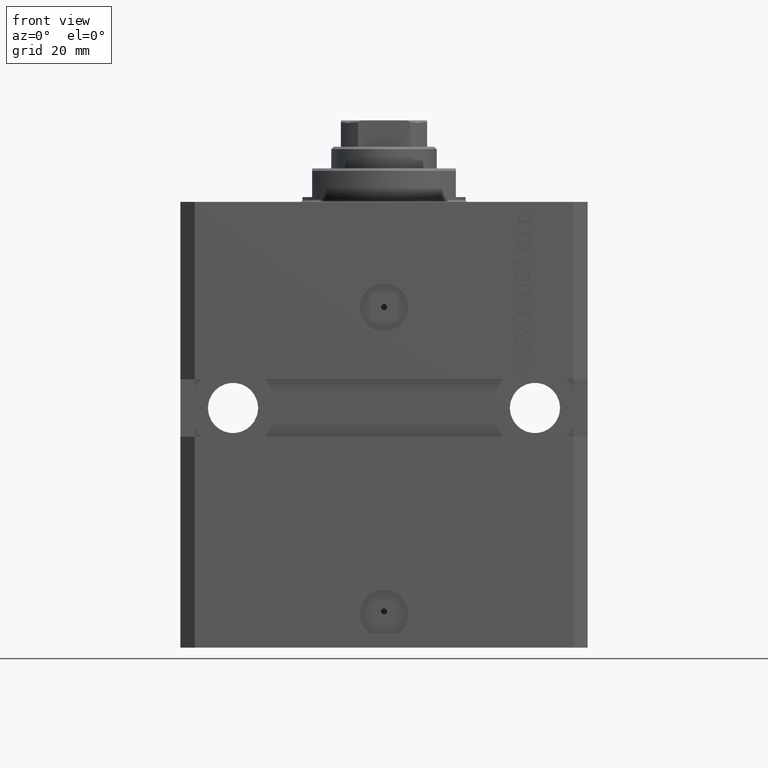
[diagram: clean part render]
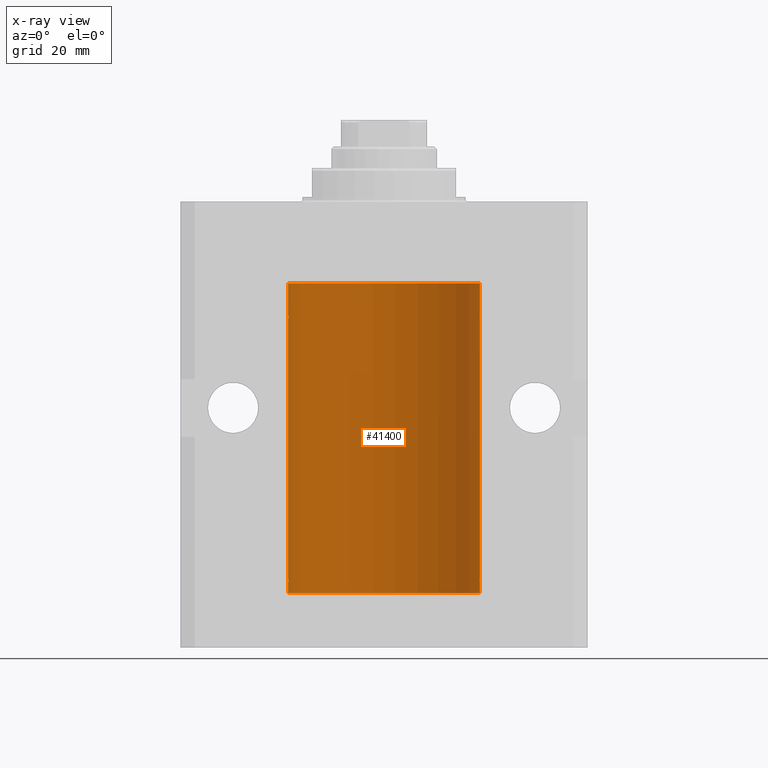
[diagram: x-ray — body ghosted, one internal face saturated and labeled with its STEP entity id]
A machine part, front view, then the same camera in x-ray: the body is ghosted and one INTERNAL B-rep face — a face not visible from any outside direction — is saturated and labeled: STEP entity #41400.
In plain terms, the highlighted cylindrical surface (partial cylindrical patch) has radius 20 mm, axis along (0, 0, 1).
Its self-contained STEP definition (entity closure, byte-faithful):
#81 = CARTESIAN_POINT ( 'NONE',  ( -20.00000000000010303, 3.580159278407742946E-13, -24.62500000000332889 ) ) ;
#247 = CARTESIAN_POINT ( 'NONE',  ( -19.99253506710754991, 0.5587120480776751608, -24.32511620830248589 ) ) ;
#329 = VERTEX_POINT ( 'NONE', #20275 ) ;
#502 = CARTESIAN_POINT ( 'NONE',  ( 19.99638788807192924, 0.3844440352705356112, -24.49948058986480603 ) ) ;
#535 = CIRCLE ( 'NONE', #23237, 20.00000000000000000 ) ;
#1035 = LINE ( 'NONE', #21917, #13426 ) ;
#1283 = EDGE_CURVE ( 'NONE', #30152, #14944, #17532, .T. ) ;
#1665 = CARTESIAN_POINT ( 'NONE',  ( 19.99023198964909298, 0.6250000000081574747, -78.99999999999911893 ) ) ;
#1896 = CARTESIAN_POINT ( 'NONE',  ( 19.99999999999999645, 0.1631318418333158327, -78.37500000000015632 ) ) ;
#2230 = LINE ( 'NONE', #26113, #9998 ) ;
#2639 = EDGE_CURVE ( 'NONE', #42081, #6706, #33427, .T. ) ;
#2912 = VECTOR ( 'NONE', #32016, 1000.000000000000000 ) ;
#3072 = CARTESIAN_POINT ( 'NONE',  ( -19.99256581701871838, 0.5573276956901996870, -78.67348565770949165 ) ) ;
#3259 = VERTEX_POINT ( 'NONE', #36221 ) ;
#3470 = CARTESIAN_POINT ( 'NONE',  ( -19.99769349528941120, 0.3253804398728645242, -24.55855820727680339 ) ) ;
#4038 = DIRECTION ( 'NONE',  ( -0.000000000000000000, -0.000000000000000000, 1.000000000000000000 ) ) ;
#4365 = CARTESIAN_POINT ( 'NONE',  ( -19.99023018003212471, 0.6250578794725500931, -24.16284809704970371 ) ) ;
#4441 = DIRECTION ( 'NONE',  ( 0.000000000000000000, 0.000000000000000000, 1.000000000000000000 ) ) ;
#4967 = CARTESIAN_POINT ( 'NONE',  ( 20.00000000000000000, 0.000000000000000000, -81.59999999999999432 ) ) ;
#5329 = CARTESIAN_POINT ( 'NONE',  ( 19.99769474220011034, 0.3253030616682413001, -78.44140633897630721 ) ) ;
#5581 = ORIENTED_EDGE ( 'NONE', *, *, #1283, .T. ) ;
#6515 = CARTESIAN_POINT ( 'NONE',  ( -19.99638934703457238, 0.3843678041337651452, -78.50046362978099523 ) ) ;
#6706 = VERTEX_POINT ( 'NONE', #81 ) ;
#7128 = CARTESIAN_POINT ( 'NONE',  ( -20.00000000000000000, 0.1631688615953320320, -24.62499999999985434 ) ) ;
#7386 = CARTESIAN_POINT ( 'NONE',  ( 19.99999999999999645, 0.08261455565447869964, -24.62499999999998579 ) ) ;
#7433 = ORIENTED_EDGE ( 'NONE', *, *, #39396, .T. ) ;
#7579 = CARTESIAN_POINT ( 'NONE',  ( -19.99023380173166231, 0.6249420416828462832, -23.83670793056396064 ) ) ;
#7658 = DIRECTION ( 'NONE',  ( 1.000000000000000000, 0.000000000000000000, 0.000000000000000000 ) ) ;
#8403 = CARTESIAN_POINT ( 'NONE',  ( -20.00000000000000000, -1.124177324826063808E-14, -78.37500000000000000 ) ) ;
#8776 = CARTESIAN_POINT ( 'NONE',  ( 19.99947351343144319, 0.1636818329565372654, -79.60872855715646779 ) ) ;
#8934 = EDGE_CURVE ( 'NONE', #3259, #30152, #25955, .T. ) ;
#9001 = CARTESIAN_POINT ( 'NONE',  ( 20.00000000000000000, -4.058908006348821872E-15, -79.62500000000000000 ) ) ;
#9241 = CARTESIAN_POINT ( 'NONE',  ( -20.00000000000000000, 2.449293598294706513E-15, -81.59999999999999432 ) ) ;
#9511 = CARTESIAN_POINT ( 'NONE',  ( -20.00000000000010303, 3.580159286679549072E-13, -79.62500000000332534 ) ) ;
#9998 = VECTOR ( 'NONE', #33223, 1000.000000000000000 ) ;
#10498 = VERTEX_POINT ( 'NONE', #11542 ) ;
#10621 = CARTESIAN_POINT ( 'NONE',  ( 19.99256353007439202, 0.5574106582031151946, -24.32639035180115172 ) ) ;
#10808 = CARTESIAN_POINT ( 'NONE',  ( -19.99638934703457593, 0.3843678041337688644, -23.50046362978100944 ) ) ;
#11261 = CARTESIAN_POINT ( 'NONE',  ( -19.99766197842594906, 0.3150331617867667688, -23.45402070102505476 ) ) ;
#11542 = CARTESIAN_POINT ( 'NONE',  ( -20.00000000000000000, 2.449293598294706513E-15, -81.59999999999999432 ) ) ;
#11548 = CARTESIAN_POINT ( 'NONE',  ( 19.99256353007439202, 0.5574106582031174151, -79.32639035180115172 ) ) ;
#11671 = EDGE_CURVE ( 'NONE', #14089, #39260, #2230, .T. ) ;
#12098 = LINE ( 'NONE', #4967, #30684 ) ;
#12224 = CARTESIAN_POINT ( 'NONE',  ( 19.99766100389833312, 0.3150982863324784944, -79.54594438241281296 ) ) ;
#12234 = ORIENTED_EDGE ( 'NONE', *, *, #39230, .T. ) ;
#12683 = CARTESIAN_POINT ( 'NONE',  ( 19.99023198964909298, 0.6250000000081574747, -78.99999999999911893 ) ) ;
#13426 = VECTOR ( 'NONE', #4038, 1000.000000000000000 ) ;
#14089 = VERTEX_POINT ( 'NONE', #24874 ) ;
#14090 = EDGE_CURVE ( 'NONE', #14089, #10498, #535, .T. ) ;
#14721 = CARTESIAN_POINT ( 'NONE',  ( 20.00000000000000000, 1.042771508482559297E-15, -24.62500000000000000 ) ) ;
#14944 = VERTEX_POINT ( 'NONE', #26702 ) ;
#15165 = ORIENTED_EDGE ( 'NONE', *, *, #27684, .T. ) ;
#15363 = ORIENTED_EDGE ( 'NONE', *, *, #11671, .T. ) ;
#15588 = DIRECTION ( 'NONE',  ( 1.000000000000000000, 0.000000000000000000, 0.000000000000000000 ) ) ;
#15701 = CARTESIAN_POINT ( 'NONE',  ( 19.99253733128256272, 0.5586305947778931191, -23.67476036735258305 ) ) ;
#16119 = ORIENTED_EDGE ( 'NONE', *, *, #36642, .F. ) ;
#16628 = CARTESIAN_POINT ( 'NONE',  ( -19.99766197842594551, 0.3150331617867603295, -78.45402070102504410 ) ) ;
#17117 = CARTESIAN_POINT ( 'NONE',  ( 20.00000000000000000, 0.000000000000000000, -17.00000000000000000 ) ) ;
#17118 = CARTESIAN_POINT ( 'NONE',  ( 20.00000000000000000, 0.000000000000000000, -81.59999999999999432 ) ) ;
#17188 = EDGE_CURVE ( 'NONE', #14944, #32445, #12098, .T. ) ;
#17532 = B_SPLINE_CURVE_WITH_KNOTS ( 'NONE', 3,
 ( #30155, #19139, #15701, #40456, #26261, #43442 ),
 .UNSPECIFIED., .F., .F.,
 ( 4, 2, 4 ),
 ( 0.0009772989342736214998, 0.001465726722058845102, 0.001954154509844068920 ),
 .UNSPECIFIED. ) ;
#18110 = ORIENTED_EDGE ( 'NONE', *, *, #2639, .T. ) ;
#18134 = CARTESIAN_POINT ( 'NONE',  ( -19.99256581701871482, 0.5573276956902001311, -23.67348565770948809 ) ) ;
#18946 = B_SPLINE_CURVE_WITH_KNOTS ( 'NONE', 3,
 ( #45275, #34060, #31302, #16628, #6515, #3072, #37943, #26958, #31078, #45050, #38167, #9511 ),
 .UNSPECIFIED., .F., .F.,
 ( 4, 2, 2, 2, 2, 4 ),
 ( 1.522880481566060999E-18, 0.0002442693137305179392, 0.0004885386274610343605, 0.0009770772549220966934, 0.001465615882383158918, 0.001954154509844221576 ),
 .UNSPECIFIED. ) ;
#19022 = ORIENTED_EDGE ( 'NONE', *, *, #26352, .F. ) ;
#19139 = CARTESIAN_POINT ( 'NONE',  ( 19.99023198964935588, 0.6249999999995746736, -23.83696384779806721 ) ) ;
#19331 = DIRECTION ( 'NONE',  ( 1.000000000000000000, 0.000000000000000000, 0.000000000000000000 ) ) ;
#20095 = ORIENTED_EDGE ( 'NONE', *, *, #17188, .T. ) ;
#20248 = DIRECTION ( 'NONE',  ( -0.000000000000000000, -0.000000000000000000, 1.000000000000000000 ) ) ;
#20275 = CARTESIAN_POINT ( 'NONE',  ( -20.00000000000000000, 2.449293598294706513E-15, -17.00000000000000000 ) ) ;
#21116 = VERTEX_POINT ( 'NONE', #8403 ) ;
#21917 = CARTESIAN_POINT ( 'NONE',  ( -20.00000000000000000, 2.449293598294706513E-15, -81.59999999999999432 ) ) ;
#21926 = VECTOR ( 'NONE', #20248, 1000.000000000000000 ) ;
#22013 = DIRECTION ( 'NONE',  ( -0.000000000000000000, -0.000000000000000000, 1.000000000000000000 ) ) ;
#22544 = ORIENTED_EDGE ( 'NONE', *, *, #14090, .F. ) ;
#22767 = CARTESIAN_POINT ( 'NONE',  ( 0.000000000000000000, 0.000000000000000000, -17.00000000000000000 ) ) ;
#22856 = DIRECTION ( 'NONE',  ( -0.000000000000000000, -0.000000000000000000, 1.000000000000000000 ) ) ;
#23144 = CARTESIAN_POINT ( 'NONE',  ( 20.00000000000010303, 3.555666352936568165E-13, -78.37499999999667466 ) ) ;
#23237 = AXIS2_PLACEMENT_3D ( 'NONE', #35425, #4441, #7658 ) ;
#23682 = DIRECTION ( 'NONE',  ( -0.000000000000000000, -0.000000000000000000, 1.000000000000000000 ) ) ;
#24133 = VECTOR ( 'NONE', #23682, 1000.000000000000000 ) ;
#24874 = CARTESIAN_POINT ( 'NONE',  ( 20.00000000000000000, 0.000000000000000000, -81.59999999999999432 ) ) ;
#25237 = CARTESIAN_POINT ( 'NONE',  ( 0.000000000000000000, 0.000000000000000000, -81.59999999999999432 ) ) ;
#25246 = CARTESIAN_POINT ( 'NONE',  ( -20.00000000000000000, -2.867584836844214272E-15, -23.37500000000000000 ) ) ;
#25955 = B_SPLINE_CURVE_WITH_KNOTS ( 'NONE', 3,
 ( #14721, #7386, #31950, #31724, #502, #10621, #28506, #42691 ),
 .UNSPECIFIED., .F., .F.,
 ( 4, 2, 2, 4 ),
 ( 1.013370767385449693E-18, 0.0002443247335684061339, 0.0004886494671368111836, 0.0009772989342736214998 ),
 .UNSPECIFIED. ) ;
#26113 = CARTESIAN_POINT ( 'NONE',  ( 20.00000000000000000, 0.000000000000000000, -81.59999999999999432 ) ) ;
#26261 = CARTESIAN_POINT ( 'NONE',  ( 19.99999999999999645, 0.1631318418333146114, -23.37500000000016698 ) ) ;
#26352 = EDGE_CURVE ( 'NONE', #10498, #39793, #40655, .T. ) ;
#26361 = EDGE_CURVE ( 'NONE', #21116, #6706, #45003, .T. ) ;
#26702 = CARTESIAN_POINT ( 'NONE',  ( 20.00000000000010303, 3.555666340528858977E-13, -23.37499999999667111 ) ) ;
#26876 = ORIENTED_EDGE ( 'NONE', *, *, #45201, .T. ) ;
#26958 = CARTESIAN_POINT ( 'NONE',  ( -19.99023018003212471, 0.6250578794725522025, -79.16284809704971792 ) ) ;
#27506 = CARTESIAN_POINT ( 'NONE',  ( 19.99023198964909298, 0.6250000000081508134, -23.99999999999910472 ) ) ;
#27684 = EDGE_CURVE ( 'NONE', #32119, #3259, #41654, .T. ) ;
#28506 = CARTESIAN_POINT ( 'NONE',  ( 19.99023198964933812, 0.6250000000002681189, -24.16311014829328130 ) ) ;
#29626 = CIRCLE ( 'NONE', #36947, 20.00000000000000000 ) ;
#30058 = CARTESIAN_POINT ( 'NONE',  ( -20.00000000000010303, 3.580159286679549072E-13, -79.62500000000332534 ) ) ;
#30152 = VERTEX_POINT ( 'NONE', #27506 ) ;
#30155 = CARTESIAN_POINT ( 'NONE',  ( 19.99023198964909298, 0.6250000000081508134, -23.99999999999910472 ) ) ;
#30336 = CARTESIAN_POINT ( 'NONE',  ( -20.00000000000000000, -2.867584836844214272E-15, -23.37500000000000000 ) ) ;
#30684 = VECTOR ( 'NONE', #22856, 1000.000000000000000 ) ;
#31078 = CARTESIAN_POINT ( 'NONE',  ( -19.99253506710754991, 0.5587120480776742726, -79.32511620830248944 ) ) ;
#31302 = CARTESIAN_POINT ( 'NONE',  ( -19.99947377218718003, 0.1636439183262797525, -78.39126364004653169 ) ) ;
#31724 = CARTESIAN_POINT ( 'NONE',  ( 19.99766100389832957, 0.3150982863324730543, -24.54594438241278453 ) ) ;
#31950 = CARTESIAN_POINT ( 'NONE',  ( 19.99947351343144675, 0.1636818329565319363, -24.60872855715643936 ) ) ;
#32016 = DIRECTION ( 'NONE',  ( -0.000000000000000000, -0.000000000000000000, 1.000000000000000000 ) ) ;
#32119 = VERTEX_POINT ( 'NONE', #23144 ) ;
#32445 = VERTEX_POINT ( 'NONE', #17117 ) ;
#33104 = CARTESIAN_POINT ( 'NONE',  ( 20.00000000000010303, 3.555666352936568165E-13, -78.37499999999667466 ) ) ;
#33223 = DIRECTION ( 'NONE',  ( -0.000000000000000000, -0.000000000000000000, 1.000000000000000000 ) ) ;
#33334 = CARTESIAN_POINT ( 'NONE',  ( 19.99999999999999645, 0.08261455565447825555, -79.62499999999997158 ) ) ;
#33427 = B_SPLINE_CURVE_WITH_KNOTS ( 'NONE', 3,
 ( #25246, #38552, #39000, #11261, #10808, #18134, #7579, #4365, #247, #3470, #7128, #42436 ),
 .UNSPECIFIED., .F., .F.,
 ( 4, 2, 2, 2, 2, 4 ),
 ( 5.848927291235706941E-19, 0.0002442693137305304075, 0.0004885386274610601645, 0.0009770772549221123059, 0.001465615882383164339, 0.001954154509844215938 ),
 .UNSPECIFIED. ) ;
#33809 = ORIENTED_EDGE ( 'NONE', *, *, #8934, .T. ) ;
#34060 = CARTESIAN_POINT ( 'NONE',  ( -19.99999999999999289, 0.08259581631026131909, -78.37499999999998579 ) ) ;
#34671 = AXIS2_PLACEMENT_3D ( 'NONE', #25237, #22013, #15588 ) ;
#34735 = CARTESIAN_POINT ( 'NONE',  ( 20.00000000000000000, -4.058908006348821872E-15, -79.62500000000000000 ) ) ;
#35425 = CARTESIAN_POINT ( 'NONE',  ( 0.000000000000000000, 0.000000000000000000, -81.59999999999999432 ) ) ;
#35861 = B_SPLINE_CURVE_WITH_KNOTS ( 'NONE', 3,
 ( #1665, #36757, #39966, #5329, #1896, #33104 ),
 .UNSPECIFIED., .F., .F.,
 ( 4, 2, 4 ),
 ( 0.0009772989342736221503, 0.001465726722058849005, 0.001954154509844075859 ),
 .UNSPECIFIED. ) ;
#36221 = CARTESIAN_POINT ( 'NONE',  ( 20.00000000000000000, 1.042771508482559297E-15, -24.62500000000000000 ) ) ;
#36642 = EDGE_CURVE ( 'NONE', #42081, #329, #1035, .T. ) ;
#36757 = CARTESIAN_POINT ( 'NONE',  ( 19.99023198964936299, 0.6249999999995806688, -78.83696384779808852 ) ) ;
#36947 = AXIS2_PLACEMENT_3D ( 'NONE', #22767, #40201, #19331 ) ;
#37213 = CARTESIAN_POINT ( 'NONE',  ( -20.00000000000000000, 2.449293598294706513E-15, -81.59999999999999432 ) ) ;
#37326 = ORIENTED_EDGE ( 'NONE', *, *, #26361, .F. ) ;
#37943 = CARTESIAN_POINT ( 'NONE',  ( -19.99023380173166231, 0.6249420416828449509, -78.83670793056396064 ) ) ;
#38167 = CARTESIAN_POINT ( 'NONE',  ( -20.00000000000000355, 0.1631688615953343080, -79.62499999999984368 ) ) ;
#38552 = CARTESIAN_POINT ( 'NONE',  ( -19.99999999999999645, 0.08259581631026780002, -23.37500000000000000 ) ) ;
#39000 = CARTESIAN_POINT ( 'NONE',  ( -19.99947377218718714, 0.1636439183262877461, -23.39126364004656011 ) ) ;
#39120 = EDGE_LOOP ( 'NONE', ( #19022, #22544, #15363, #26876, #7433, #15165, #33809, #5581, #20095, #44844, #16119, #18110, #37326, #12234 ) ) ;
#39215 = FACE_OUTER_BOUND ( 'NONE', #39120, .T. ) ;
#39230 = EDGE_CURVE ( 'NONE', #21116, #39793, #18946, .T. ) ;
#39260 = VERTEX_POINT ( 'NONE', #34735 ) ;
#39396 = EDGE_CURVE ( 'NONE', #39437, #32119, #35861, .T. ) ;
#39437 = VERTEX_POINT ( 'NONE', #12683 ) ;
#39509 = CARTESIAN_POINT ( 'NONE',  ( 19.99023198964934167, 0.6250000000002757794, -79.16311014829327064 ) ) ;
#39793 = VERTEX_POINT ( 'NONE', #30058 ) ;
#39966 = CARTESIAN_POINT ( 'NONE',  ( 19.99253733128256627, 0.5586305947779004466, -78.67476036735259015 ) ) ;
#40201 = DIRECTION ( 'NONE',  ( 0.000000000000000000, 0.000000000000000000, 1.000000000000000000 ) ) ;
#40411 = CARTESIAN_POINT ( 'NONE',  ( 19.99023198964909298, 0.6250000000081574747, -78.99999999999911893 ) ) ;
#40456 = CARTESIAN_POINT ( 'NONE',  ( 19.99769474220010679, 0.3253030616682399678, -23.44140633897632142 ) ) ;
#40655 = LINE ( 'NONE', #37213, #24133 ) ;
#40868 = B_SPLINE_CURVE_WITH_KNOTS ( 'NONE', 3,
 ( #9001, #33334, #8776, #12224, #43171, #11548, #39509, #40411 ),
 .UNSPECIFIED., .F., .F.,
 ( 4, 2, 2, 4 ),
 ( 3.944467879762244826E-18, 0.0002443247335684012008, 0.0004886494671367983900, 0.0009772989342736221503 ),
 .UNSPECIFIED. ) ;
#41400 = ADVANCED_FACE ( 'NONE', ( #39215 ), #43105, .F. ) ;
#41654 = LINE ( 'NONE', #17118, #2912 ) ;
#42081 = VERTEX_POINT ( 'NONE', #30336 ) ;
#42436 = CARTESIAN_POINT ( 'NONE',  ( -20.00000000000010303, 3.580159278407742946E-13, -24.62500000000332889 ) ) ;
#42691 = CARTESIAN_POINT ( 'NONE',  ( 19.99023198964909298, 0.6250000000081508134, -23.99999999999910472 ) ) ;
#42845 = EDGE_CURVE ( 'NONE', #32445, #329, #29626, .T. ) ;
#43105 = CYLINDRICAL_SURFACE ( 'NONE', #34671, 20.00000000000000000 ) ;
#43171 = CARTESIAN_POINT ( 'NONE',  ( 19.99638788807192924, 0.3844440352705359998, -79.49948058986481669 ) ) ;
#43442 = CARTESIAN_POINT ( 'NONE',  ( 20.00000000000010303, 3.555666340528858977E-13, -23.37499999999667111 ) ) ;
#44844 = ORIENTED_EDGE ( 'NONE', *, *, #42845, .T. ) ;
#45003 = LINE ( 'NONE', #9241, #21926 ) ;
#45050 = CARTESIAN_POINT ( 'NONE',  ( -19.99769349528941831, 0.3253804398728615266, -79.55855820727680339 ) ) ;
#45201 = EDGE_CURVE ( 'NONE', #39260, #39437, #40868, .T. ) ;
#45275 = CARTESIAN_POINT ( 'NONE',  ( -20.00000000000000000, -1.124177324826063808E-14, -78.37500000000000000 ) ) ;